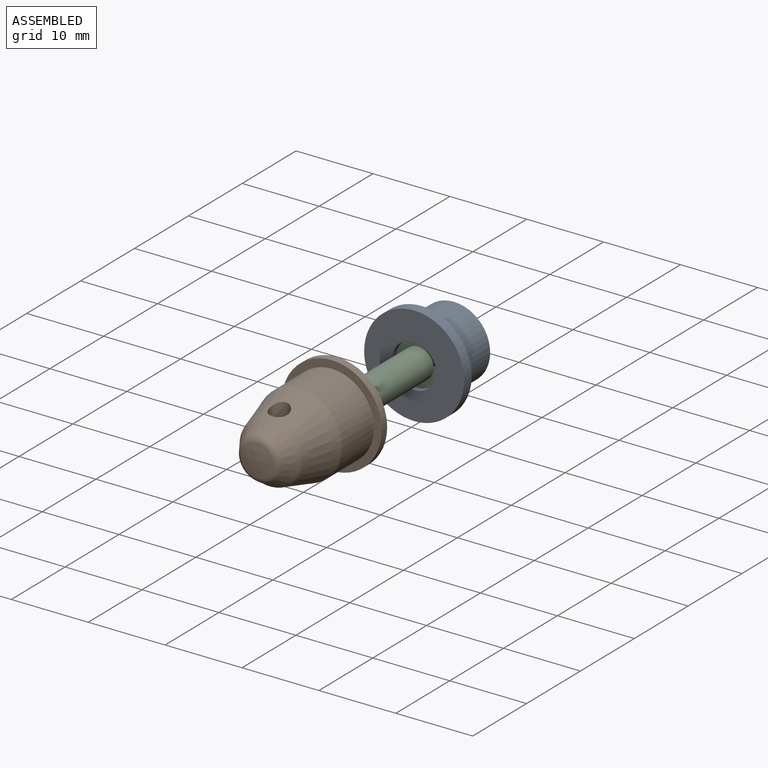
[diagram: assembled view]
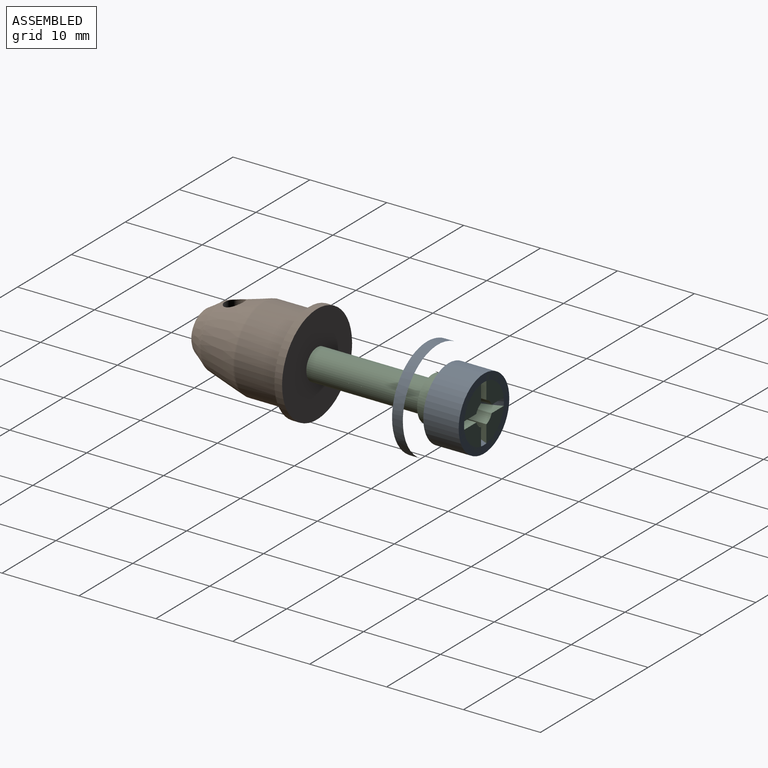
[diagram: assembled view, second angle]
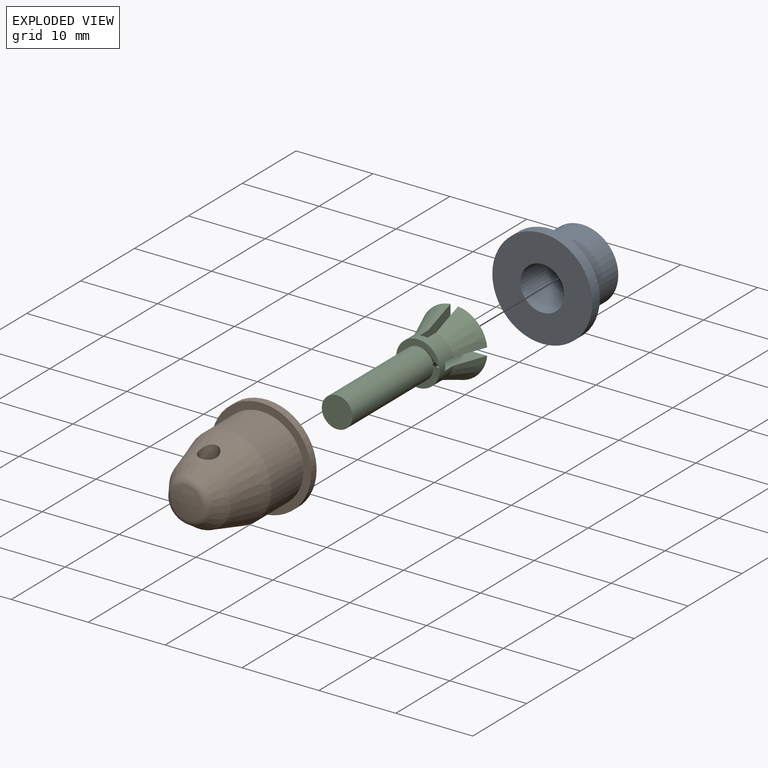
[diagram: exploded view]
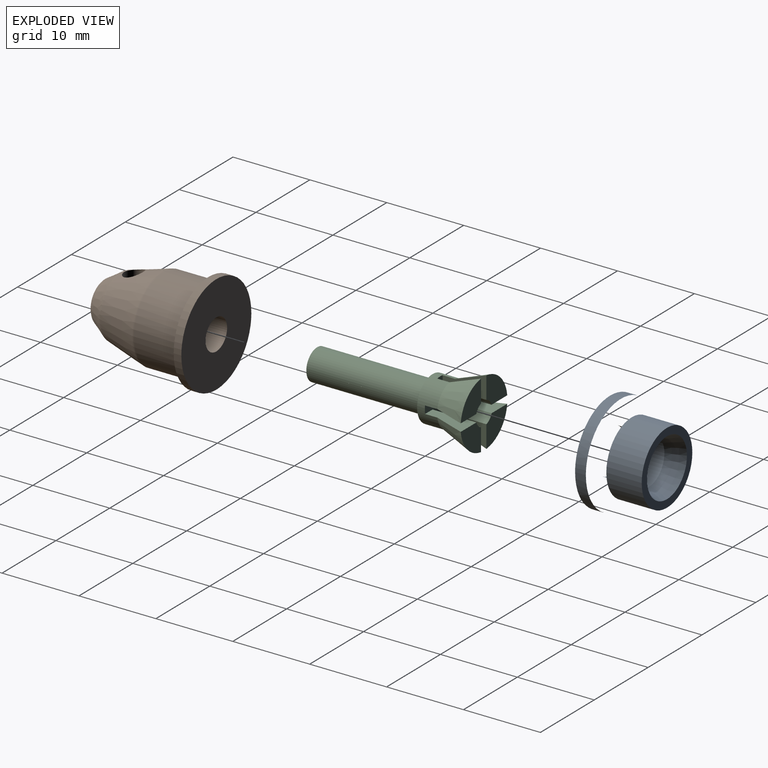
[diagram: exploded view, second angle]
ASSEMBLY  parts=3 mates=2
PART A: 7 faces, bbox 13x7.4x13.2 mm
  f0: cone r=3.28mm half-angle=20deg, axis (0,1,0), area 51.1mm2, adj f1,f2
  f1: cylinder r=2.85mm len=5.7mm, axis (0,-1,0), area 90.7mm2, adj f0,f3
  f2: plane 9.57x9.4mm, normal (0,1,0), area 26.4mm2, adj f0,f4
  f3: plane 13.24x13mm, normal (0,-1,0), area 107.2mm2, adj f1,f5
  f4: cylinder r=4.7mm len=9.4mm, axis (0,1,0), area 135.8mm2, adj f2,f6
  f5: cylinder r=6.5mm len=13mm, axis (0,1,0), area 57.2mm2, adj f3,f6
  f6: cone r=5.6mm half-angle=52.1deg, axis (0,-1,0), area 80.2mm2, adj f4,f5
PART B: 14 faces, bbox 13x15x13.2 mm
  f0: sphere r=10.57mm, area 13.8mm2, adj f1
  f1: torus R=1.88mm, axis (0,1,0), area 12.1mm2, adj f0,f2
  f2: cone r=3.25mm half-angle=33.1deg, axis (0,1,0), area 45.5mm2, adj f1,f5
  f3: cylinder r=5.5mm len=11mm, axis (0,1,0), area 202.6mm2, adj f4,f6
  f4: plane 13.24x13mm, normal (0,-1,0), area 37.7mm2, adj f3,f7
  f5: torus R=3.08mm, axis (0,1,0), area 7.7mm2, adj f2,f9
  f6: torus R=4.5mm, axis (0,1,0), area 9.3mm2, adj f3,f9
  f7: cylinder r=6.5mm len=13mm, axis (0,1,0), area 40.8mm2, adj f4,f11
  f8: cylinder r=1.25mm len=3.24mm, axis (0,0,1), area 20.3mm2, adj f9,f13
  f9: cone r=4.75mm half-angle=15.5deg, axis (0,1,0), area 148.4mm2, adj f5,f6,f8,f12
  f10: plane 4.07x4mm, normal (0,1,0), area 12.6mm2, adj f13
  f11: plane 13.24x13mm, normal (0,1,0), area 120.2mm2, adj f7,f13
  f12: cylinder r=1.25mm len=3.24mm, axis (0,0,1), area 20.3mm2, adj f9,f13
  f13: cylinder r=2mm len=13mm, axis (0,1,0), area 153.1mm2, adj f8,f10,f11,f12
PART C: 25 faces, bbox 9.1x22.2x9.1 mm
  f0: plane 3.82x3.78mm, normal (0,1,0), area 10.1mm2, adj f3,f9,f10,f11
  f1: plane 3.86x3.83mm, normal (0,1,0), area 10.4mm2, adj f5,f12,f13,f14
  f2: plane 3.86x3.83mm, normal (0,1,0), area 10.4mm2, adj f4,f15,f16,f17
  f3: cylinder r=1.5mm len=5.7mm, axis (0,1,0), area 7.4mm2, adj f0,f9,f11,f18
  f4: cylinder r=1.5mm len=5.7mm, axis (0,1,0), area 7.9mm2, adj f2,f15,f17,f18
  f5: cylinder r=1.5mm len=5.7mm, axis (0,1,0), area 7.9mm2, adj f1,f12,f14,f18
  f6: cylinder r=1.5mm len=5.7mm, axis (0,1,0), area 7.4mm2, adj f7,f8,f18,f19
  f7: plane 3.82x3.78mm, normal (0,1,0), area 10.1mm2, adj f6,f8,f19,f20
  f8: plane 6.16x3.37mm, normal (0,0,1), area 11mm2, adj f6,f7,f18,f20,f21
  f9: plane 6.16x3.37mm, normal (0,0,-1), area 11mm2, adj f0,f3,f10,f18,f21
  f10: cone r=3.6mm half-angle=20.1deg, axis (0,1,0), area 20mm2, adj f0,f9,f11,f21
  f11: plane 6.17x3.39mm, normal (-1,0,0), area 11.1mm2, adj f0,f3,f10,f18,f21
  f12: plane 5.7x2.9mm, normal (1,0,0), area 11mm2, adj f1,f5,f13,f18,f21
  f13: cone r=3.6mm half-angle=20.1deg, axis (0,1,0), area 20.4mm2, adj f1,f12,f14,f21
  f14: plane 6.17x3.38mm, normal (0,0,-1), area 11mm2, adj f1,f5,f13,f18,f21
  f15: plane 5.7x2.91mm, normal (0,0,1), area 11mm2, adj f2,f4,f16,f18,f21
  f16: cone r=3.6mm half-angle=20.1deg, axis (0,1,0), area 20.4mm2, adj f2,f15,f17,f21
  f17: plane 6.16x3.36mm, normal (1,0,0), area 11mm2, adj f2,f4,f16,f18,f21
  f18: plane 5.71x5.7mm, normal (0,1,0), area 12.5mm2, adj f3,f4,f5,f6,f8,f9,f11,f12
  f19: plane 6.17x3.38mm, normal (-1,0,0), area 11.1mm2, adj f6,f7,f18,f20,f21
  f20: cone r=3.6mm half-angle=20.1deg, axis (0,1,0), area 20mm2, adj f7,f8,f19,f21
  f21: cylinder r=2.85mm len=5.7mm, axis (0,1,0), area 40.1mm2, adj f8,f9,f10,f11,f12,f13,f14,f15
  f22: plane 5.78x5.75mm, normal (0,-1,0), area 6.7mm2, adj f21,f24
  f23: plane 4.07x4mm, normal (0,-1,0), area 12.6mm2, adj f24
  f24: cylinder r=2mm len=15mm, axis (0,-1,0), area 188.5mm2, adj f22,f23
PLACE A t=(-29.87,2.08,10.14)mm
PLACE B t=(-29.87,-2.5,10.14)mm
PLACE C t=(-29.87,1.3,10.14)mm
MATE fastened A.f5 <-> C.f24  axis (0,1,0) through (-29.87,17.75,8.69)mm
MATE slider C.f24 <-> B.f13  axis (0,-1,0) through (-29.87,-3.95,8.69)mm
